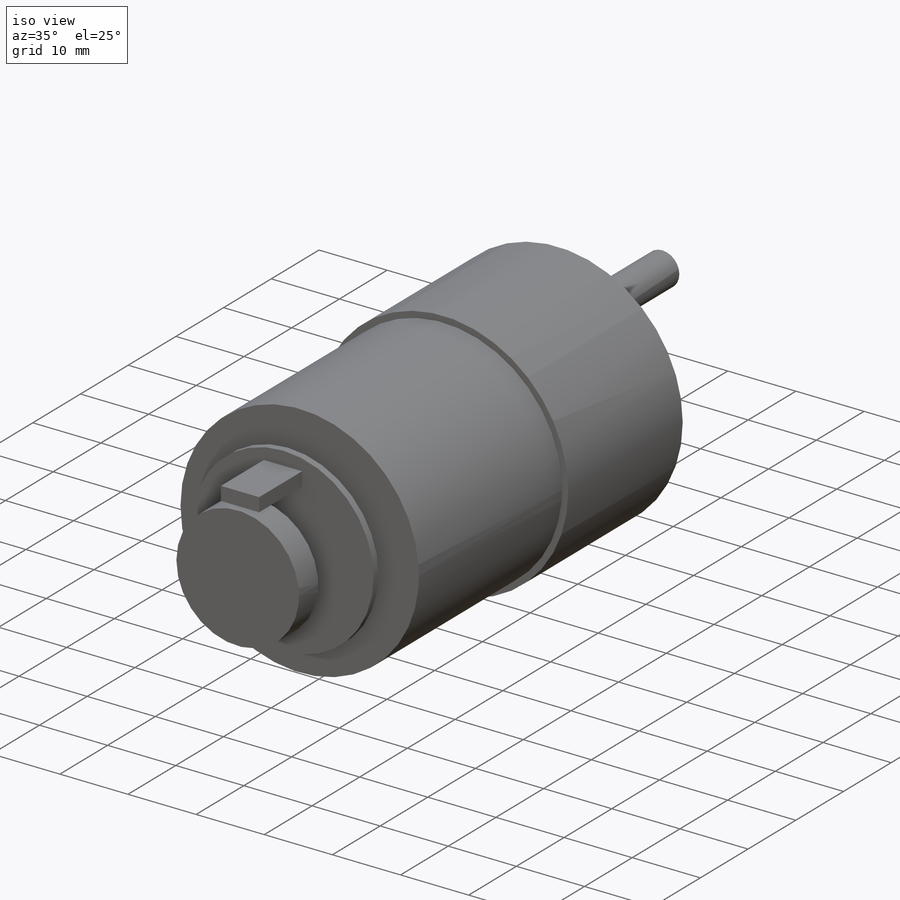
[diagram: iso view]
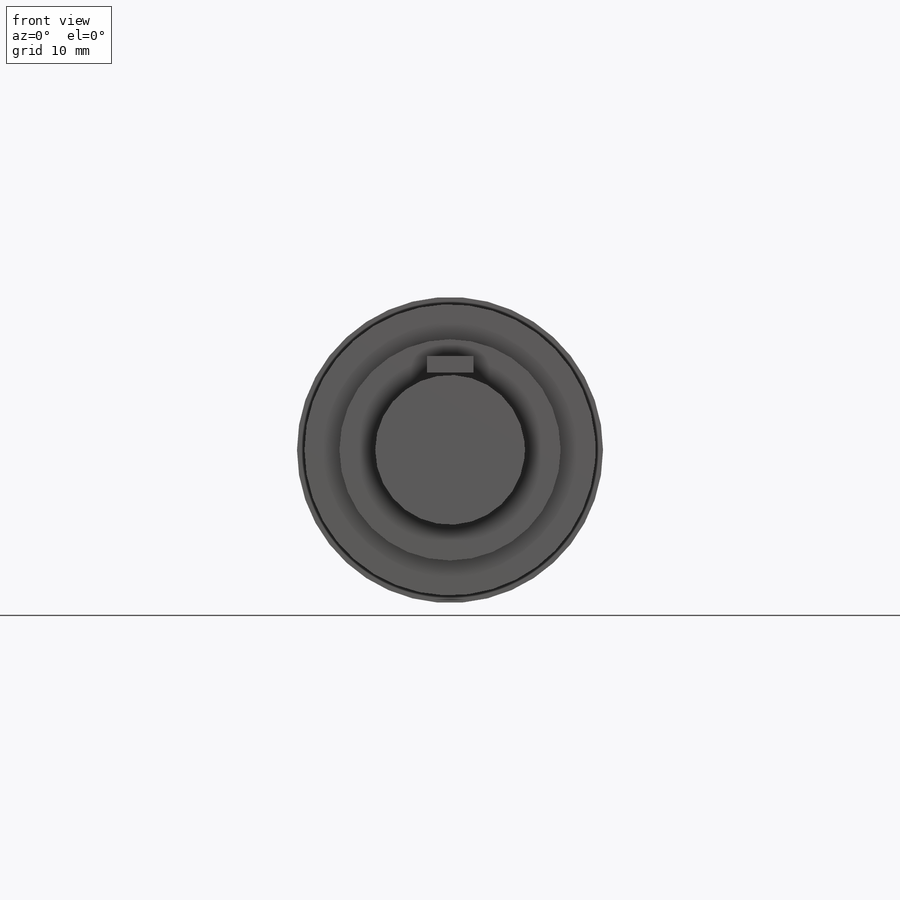
[diagram: front view]
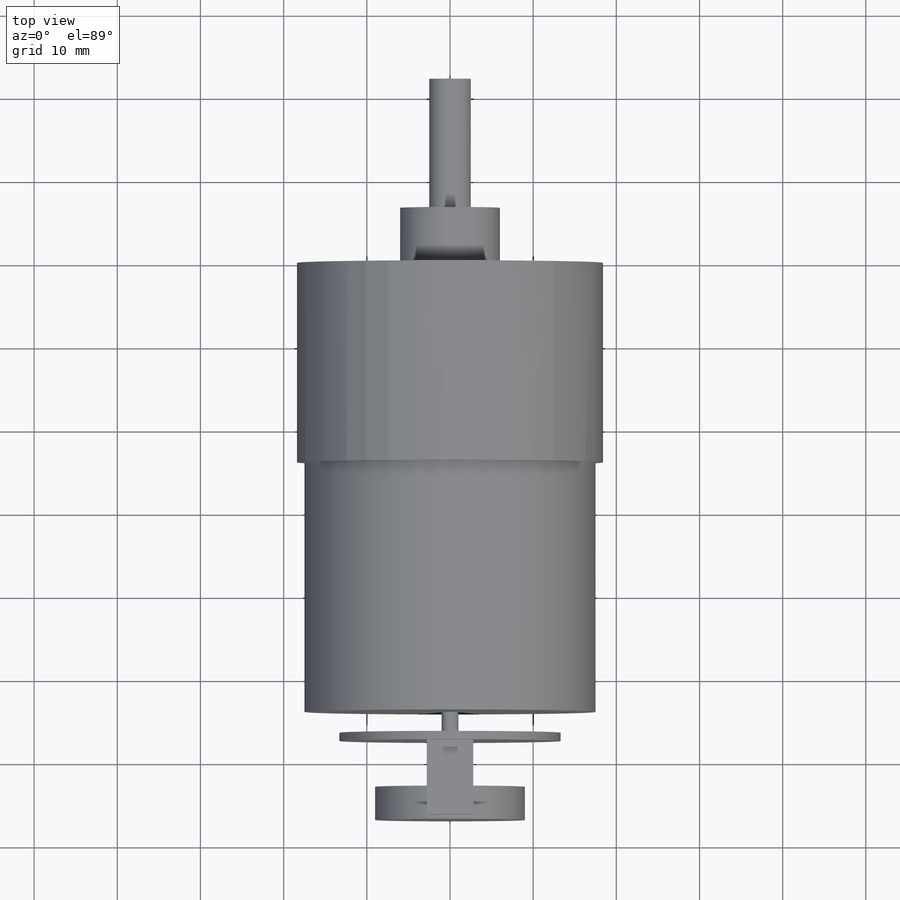
[diagram: top view]
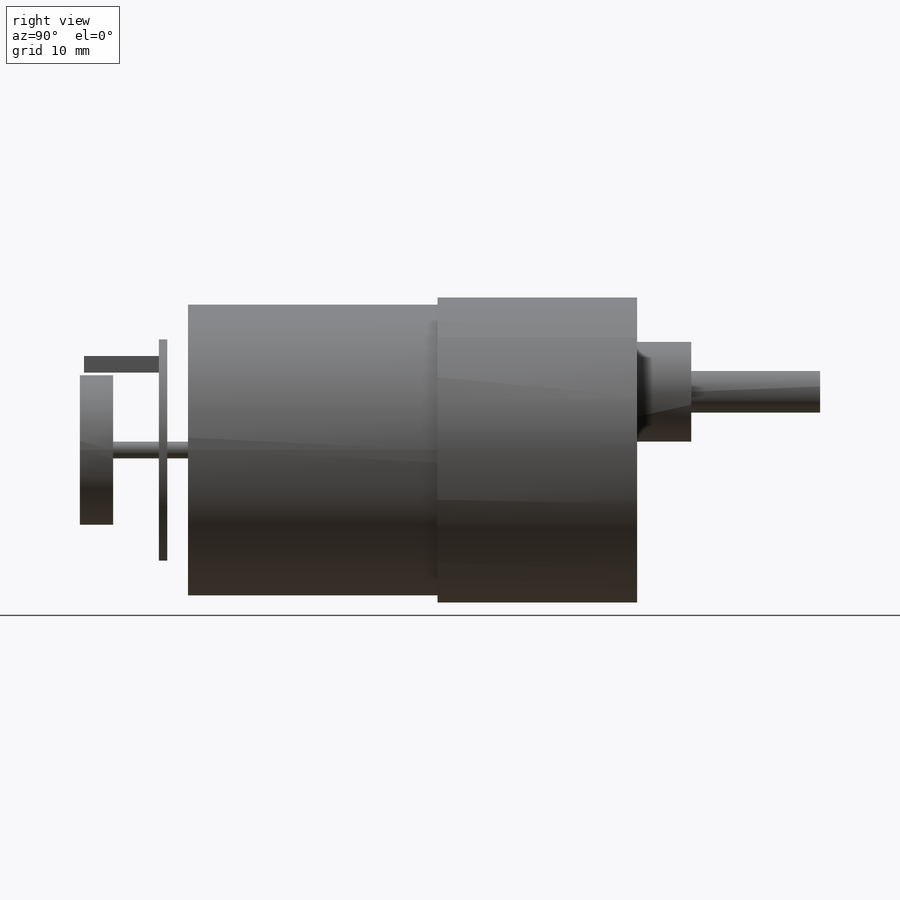
[diagram: right view]
SOLIDWORKS PART (.sldprt)
format: sldprt  version: not decoded by parser v0  size: 260,608 bytes
history: native  units: mm
features: sketch x11, extrude x9, plane x3, cut_extrude x2, material x1 (+10 scaffold rows collapsed)
feature tree (36):
  scaffold x10  (default folders/planes/origin — collapsed)
  material  "Material <não especificado>"
  plane  "Plano frontal"
  plane  "Plano superior"
  plane  "Plano direito"
  sketch  "Esboço1"  dims[D1=36.8mm]
  extrude  "Ressalto-extrusão1"  Depth=24mm
  sketch  "Esboço2"  dims[D1=35.0mm]
  extrude  "Ressalto-extrusão2"  Depth=30mm
  sketch  "Esboço3"  dims[D1=~33.880286mm]
  extrude  "Ressalto-extrusão3"  Depth=6.5mm
  sketch  "Esboço4"  dims[D1=5.0mm]
  extrude  "Ressalto-extrusão4"  Depth=15.5mm
  sketch  "Esboço5"  dims[c1.D1=~2.122275mm c1.D2=~36.095074deg c2.D1=15.5mm c3.D1=45.0deg c3.D2=90.0deg c4.D2=15.5mm c5.D2=45.0deg c6.D2=15.5mm c7.D2=60.0deg c7.D1=6.0]
  cut_extrude  "Corte-extrusão1"  Depth=10mm
  sketch  "Esboço6"  dims[D1=2.0mm]
  extrude  "Ressalto-extrusão5"  Depth=2.5mm
  sketch  "Esboço8"  dims[D1=26.6mm]
  extrude  "Ressalto-extrusão7"  Depth=1mm
  sketch  "Esboço9"  dims[D1=2.0mm]
  extrude  "Ressalto-extrusão8"  Depth=5.5mm
  sketch  "Esboço10"  dims[D1=18.0mm]
  extrude  "Ressalto-extrusão9"  Depth=4mm
  sketch  "Esboço11"  dims[c1.D1=~6.345314mm c1.D2=~41.462299mm c2.D1=3.0mm]
  extrude  "Ressalto-extrusão10"  Depth=9mm
  sketch  "Esboço12"  dims[D1=~1.372264mm]
  cut_extrude  "Corte-extrusão2"  Depth=10mm
decode coverage: 22 of 22 modeling features carry decoded parameters
note: ~ marks probable driven/reference dimensions
note: suppression state not decoded; provenance and decode notes live in map.json
